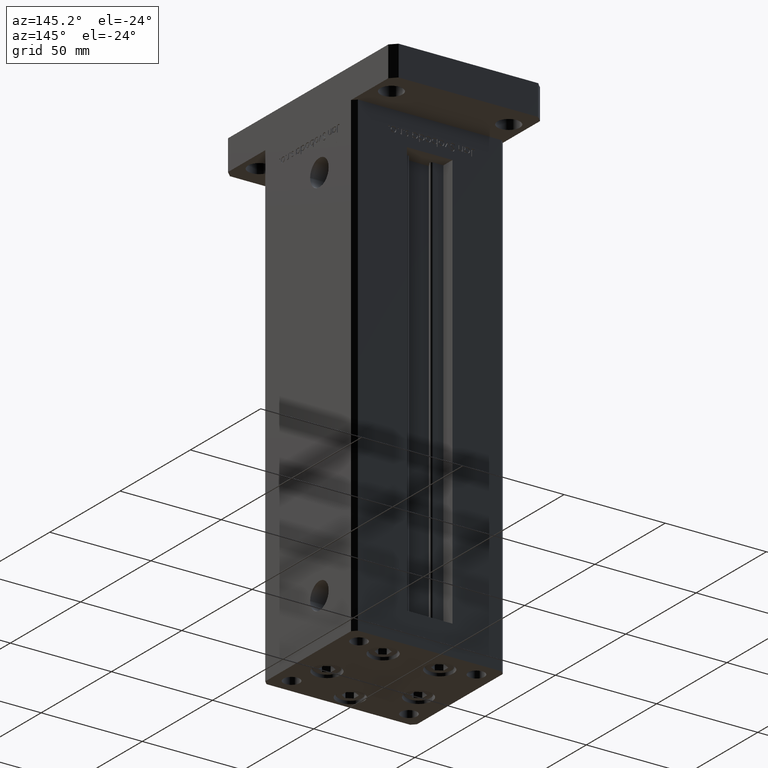
[diagram: clean part render]
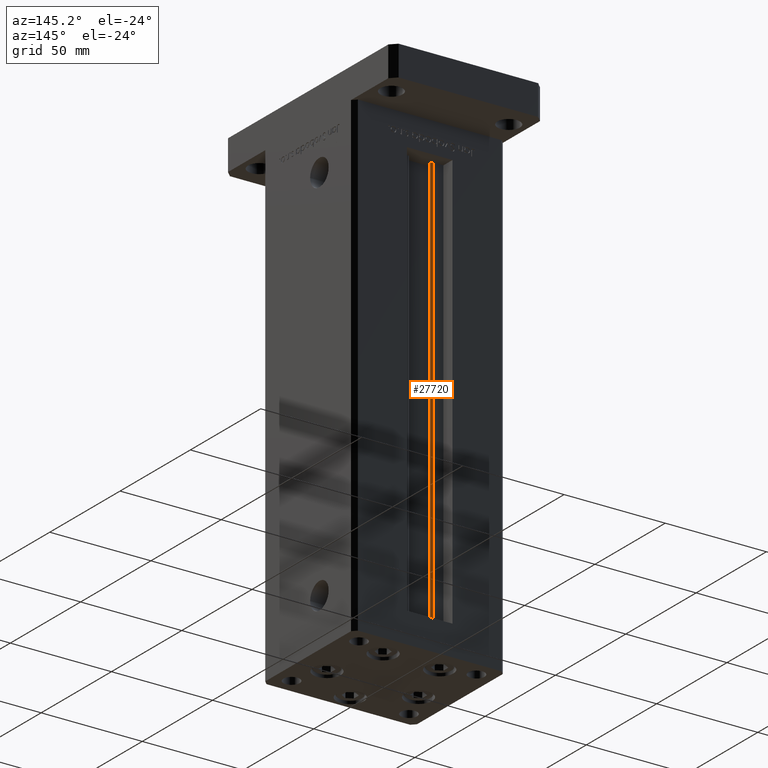
[diagram: same view with one face highlighted and labeled with its STEP entity id]
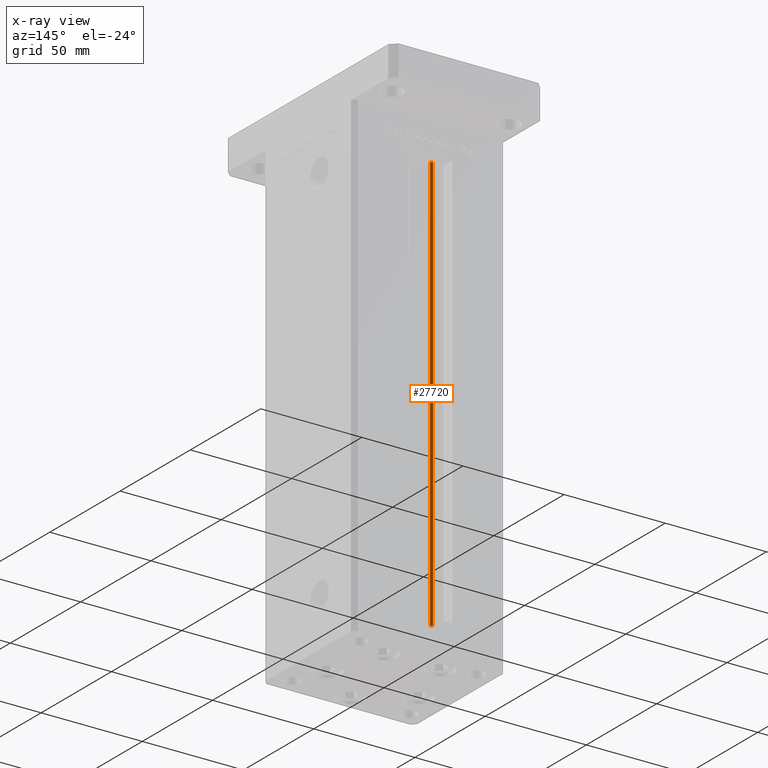
[diagram: x-ray of the same camera — body ghosted, the highlighted face saturated]
A machine part, auxiliary view. The second image highlights one B-rep face of the part: STEP entity #27720.
The next image is the same camera in x-ray: the body ghosted, the highlighted face saturated — about 0% of this face is hidden behind the body in this view.
In plain terms, the highlighted cylindrical surface (edge-blend (fillet) strip) has radius 0.9333 mm, axis along (0, 0, 1).
Its self-contained STEP definition (entity closure, byte-faithful):
#673 = VERTEX_POINT ( 'NONE', #10207 ) ;
#1135 = CARTESIAN_POINT ( 'NONE',  ( -5.250000000000000000, 25.06666666666599141, 0.000000000000000000 ) ) ;
#1769 = VECTOR ( 'NONE', #33660, 1000.000000000000000 ) ;
#3319 = FACE_OUTER_BOUND ( 'NONE', #40406, .T. ) ;
#3342 = VERTEX_POINT ( 'NONE', #12867 ) ;
#6860 = DIRECTION ( 'NONE',  ( -0.000000000000000000, -0.000000000000000000, 1.000000000000000000 ) ) ;
#6907 = DIRECTION ( 'NONE',  ( 0.000000000000000000, 0.000000000000000000, -1.000000000000000000 ) ) ;
#7402 = CARTESIAN_POINT ( 'NONE',  ( -6.183333333334001480, 25.06666666666599141, 0.000000000000000000 ) ) ;
#8066 = ORIENTED_EDGE ( 'NONE', *, *, #30583, .F. ) ;
#10207 = CARTESIAN_POINT ( 'NONE',  ( -6.183333333334001480, 25.99999999999999289, 206.0000000000000000 ) ) ;
#12081 = DIRECTION ( 'NONE',  ( -0.000000000000000000, -0.000000000000000000, 1.000000000000000000 ) ) ;
#12164 = DIRECTION ( 'NONE',  ( 1.000000000000000000, 0.000000000000000000, 0.000000000000000000 ) ) ;
#12704 = DIRECTION ( 'NONE',  ( -0.000000000000000000, -0.000000000000000000, -1.000000000000000000 ) ) ;
#12867 = CARTESIAN_POINT ( 'NONE',  ( -6.183333333334001480, 25.99999999999999289, 0.000000000000000000 ) ) ;
#15713 = CIRCLE ( 'NONE', #46835, 0.9333333333340008142 ) ;
#15889 = ORIENTED_EDGE ( 'NONE', *, *, #39517, .T. ) ;
#16312 = CYLINDRICAL_SURFACE ( 'NONE', #20651, 0.9333333333340008142 ) ;
#16444 = CIRCLE ( 'NONE', #19898, 0.9333333333340008142 ) ;
#18460 = VERTEX_POINT ( 'NONE', #36156 ) ;
#18728 = VERTEX_POINT ( 'NONE', #41549 ) ;
#19223 = VECTOR ( 'NONE', #12081, 1000.000000000000000 ) ;
#19898 = AXIS2_PLACEMENT_3D ( 'NONE', #23842, #12704, #12164 ) ;
#20651 = AXIS2_PLACEMENT_3D ( 'NONE', #7402, #6860, #40966 ) ;
#23422 = DIRECTION ( 'NONE',  ( 1.000000000000000000, 0.000000000000000000, 0.000000000000000000 ) ) ;
#23842 = CARTESIAN_POINT ( 'NONE',  ( -6.183333333334001480, 25.06666666666599141, 0.000000000000000000 ) ) ;
#27720 = ADVANCED_FACE ( 'NONE', ( #3319 ), #16312, .T. ) ;
#28898 = ORIENTED_EDGE ( 'NONE', *, *, #46035, .T. ) ;
#30583 = EDGE_CURVE ( 'NONE', #3342, #18728, #16444, .T. ) ;
#30658 = LINE ( 'NONE', #1135, #1769 ) ;
#32658 = CARTESIAN_POINT ( 'NONE',  ( -6.183333333334001480, 25.99999999999999289, 0.000000000000000000 ) ) ;
#33660 = DIRECTION ( 'NONE',  ( -0.000000000000000000, -0.000000000000000000, 1.000000000000000000 ) ) ;
#33839 = EDGE_CURVE ( 'NONE', #18728, #18460, #30658, .T. ) ;
#36156 = CARTESIAN_POINT ( 'NONE',  ( -5.250000000000000000, 25.06666666666599141, 206.0000000000000000 ) ) ;
#38783 = ORIENTED_EDGE ( 'NONE', *, *, #33839, .F. ) ;
#39517 = EDGE_CURVE ( 'NONE', #673, #18460, #15713, .T. ) ;
#40067 = LINE ( 'NONE', #32658, #19223 ) ;
#40406 = EDGE_LOOP ( 'NONE', ( #38783, #8066, #28898, #15889 ) ) ;
#40966 = DIRECTION ( 'NONE',  ( 1.000000000000000000, 0.000000000000000000, 0.000000000000000000 ) ) ;
#41549 = CARTESIAN_POINT ( 'NONE',  ( -5.250000000000000000, 25.06666666666599141, 0.000000000000000000 ) ) ;
#43481 = CARTESIAN_POINT ( 'NONE',  ( -6.183333333334001480, 25.06666666666599141, 206.0000000000000000 ) ) ;
#46035 = EDGE_CURVE ( 'NONE', #3342, #673, #40067, .T. ) ;
#46835 = AXIS2_PLACEMENT_3D ( 'NONE', #43481, #6907, #23422 ) ;